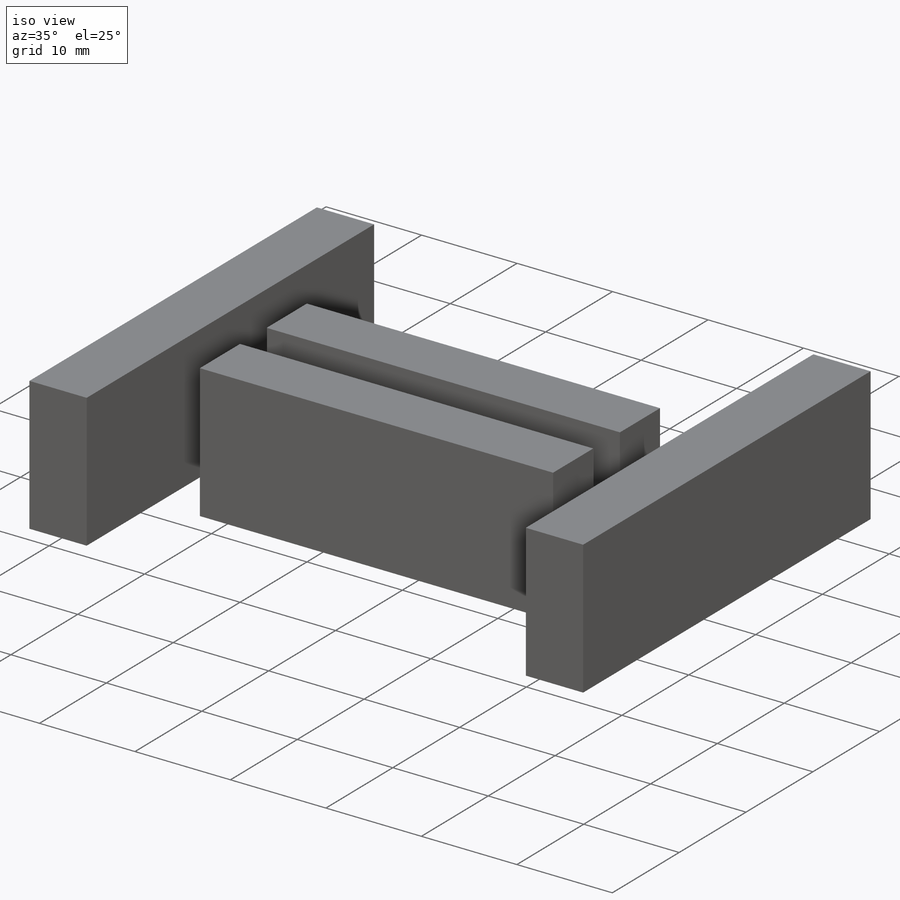
[diagram: iso view]
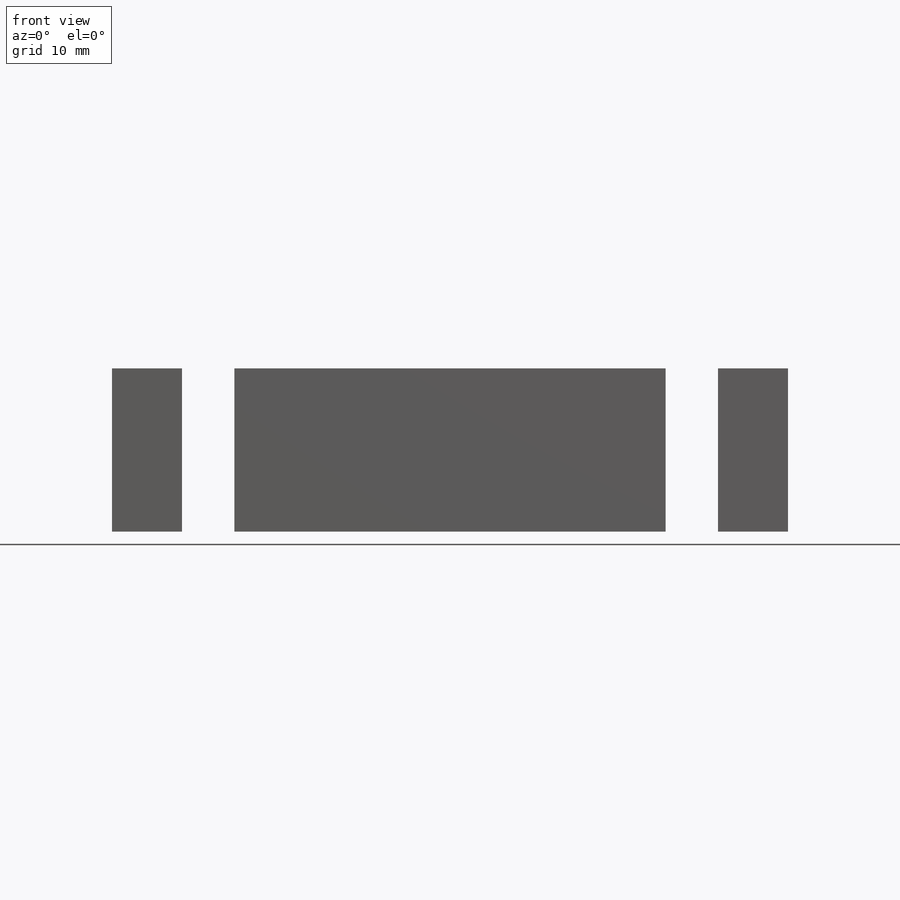
[diagram: front view]
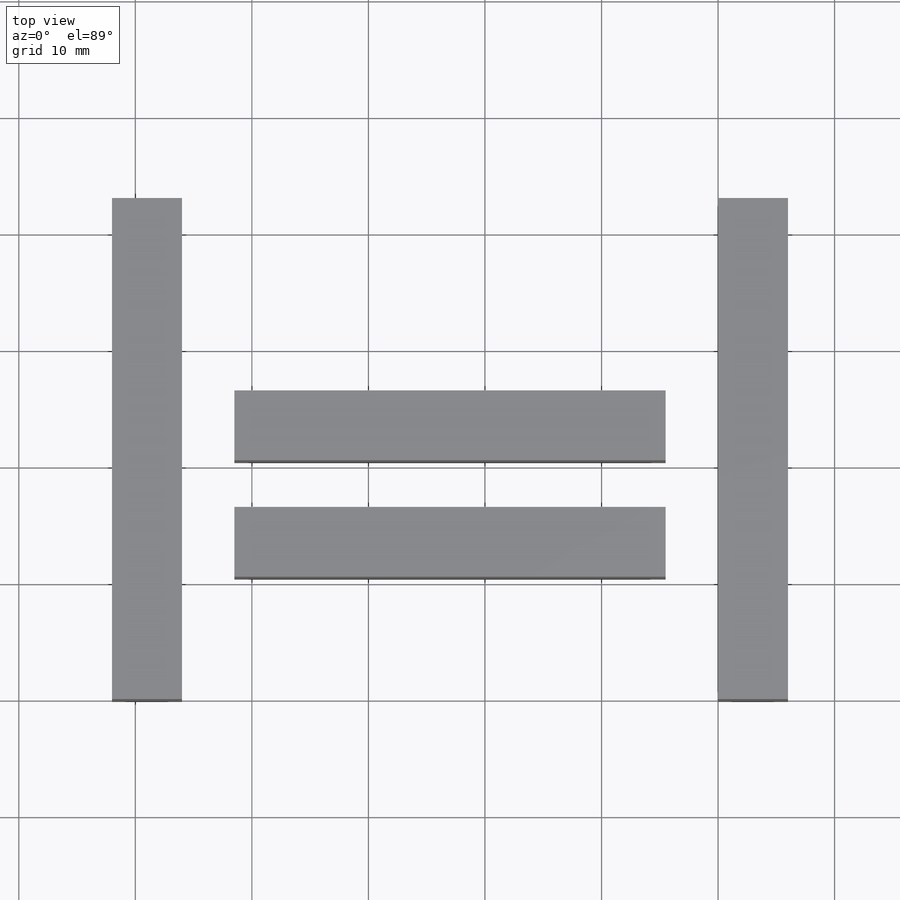
[diagram: top view]
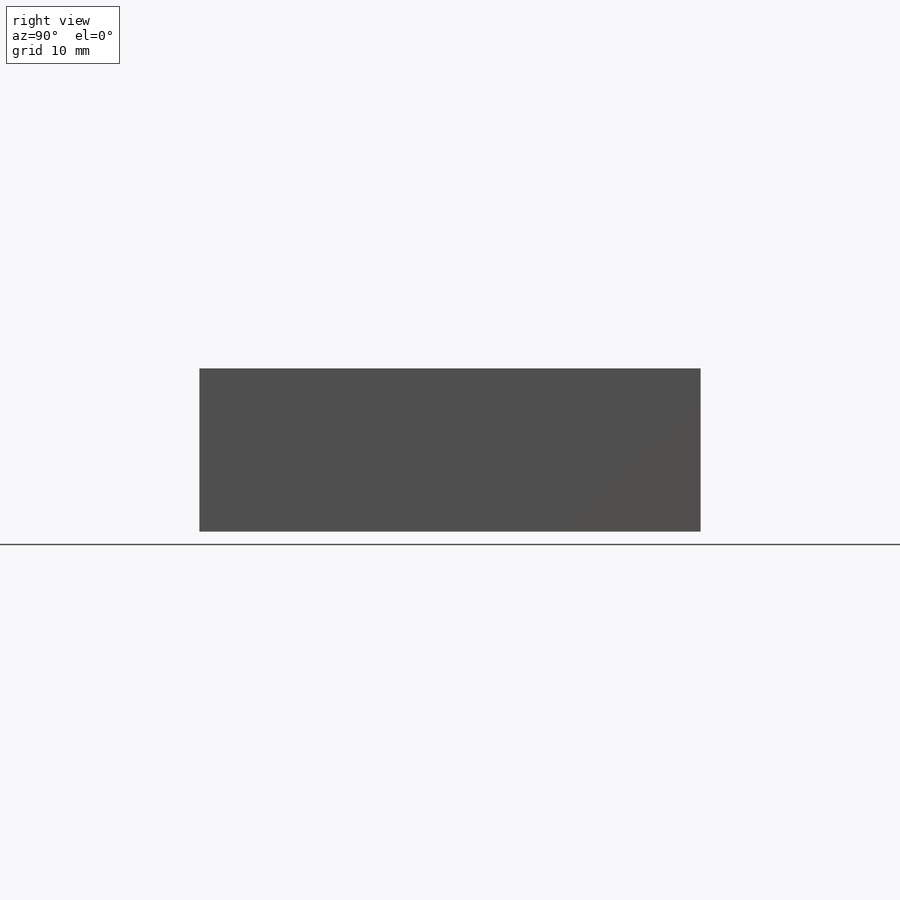
[diagram: right view]
SOLIDWORKS PART (.sldprt)
format: sldprt  version: not decoded by parser v0  size: 530,432 bytes
history: native  units: mm
features: sketch x17, extrude x14, cut_extrude x3, shell x2, material x1 (+11 scaffold rows collapsed)
feature tree (48):
  scaffold x11  (default folders/planes/origin — collapsed)
  material  "Material <not specified>"
  sketch  "Sketch7"  dims[D1=42.5mm]
  extrude  "Boss-Extrude3"  Depth=14mm
  sketch  "Sketch8"
  extrude  "Boss-Extrude4"  Depth=1mm
  sketch  "Sketch9"
  extrude  "Boss-Extrude5"  Depth=4mm
  sketch  "Sketch10"
  extrude  "Boss-Extrude6"  Depth=13.3mm
  sketch  "Sketch11"
  extrude  "Boss-Extrude7"  Depth=6mm
  sketch  "Sketch12"
  extrude  "Boss-Extrude8"  Depth=4.25mm
  sketch  "Sketch14"
  extrude  "Boss-Extrude9"  Depth=10mm
  sketch  "Sketch15"
  extrude  "Boss-Extrude10"  Depth=2.71mm
  sketch  "Sketch16"
  extrude  "Boss-Extrude11"  Depth=1mm
  sketch  "Sketch17"
  extrude  "Boss-Extrude12"  Depth=1mm
  sketch  "Sketch18"
  extrude  "Boss-Extrude13"  Depth=2mm
  sketch  "Sketch19"
  extrude  "Boss-Extrude14"  Depth=1mm
  sketch  "Sketch20"
  extrude  "Boss-Extrude15"  Depth=1.5mm
  sketch  "Sketch21"
  extrude  "Boss-Extrude16"  Depth=1.1mm
  shell  "Shell2"  Thickness=0.5mm
  sketch  "Sketch22"  dims[c1.D1=6.77mm c2.D1=2.0]
  cut_extrude  "Cut-Extrude1"  Depth=11.53mm
  shell  "Shell3"  Thickness=0.41mm
  sketch  "Sketch23"  dims[D1=0.5mm]
  cut_extrude  "Cut-Extrude2"  Depth=3mm
  sketch  "Sketch24"  dims[D1=0.45mm]
  cut_extrude  "Cut-Extrude3"  Depth=8mm
decode coverage: 23 of 36 modeling features carry decoded parameters
note: suppression state not decoded; provenance and decode notes live in map.json
